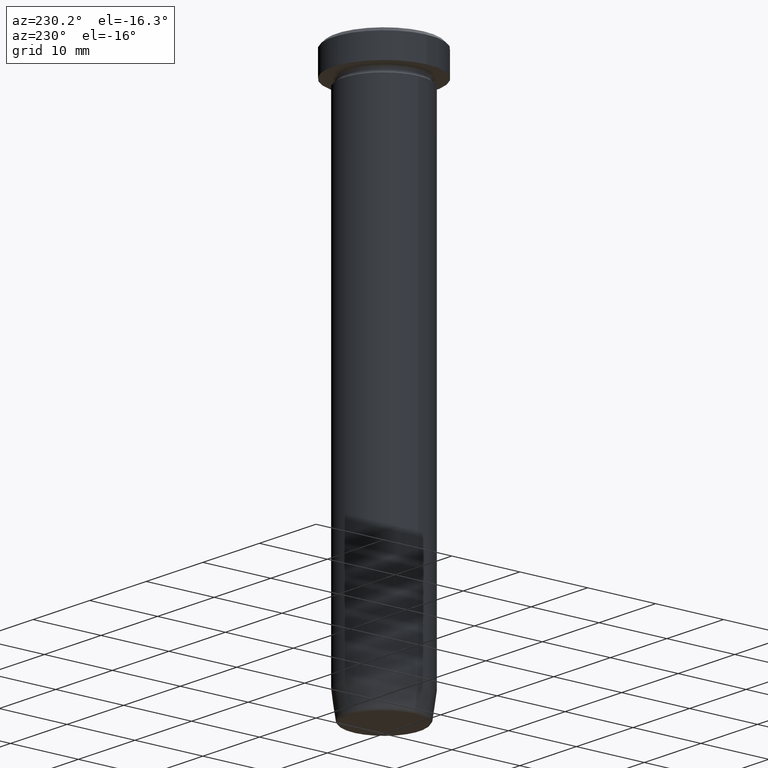
[diagram: clean part render]
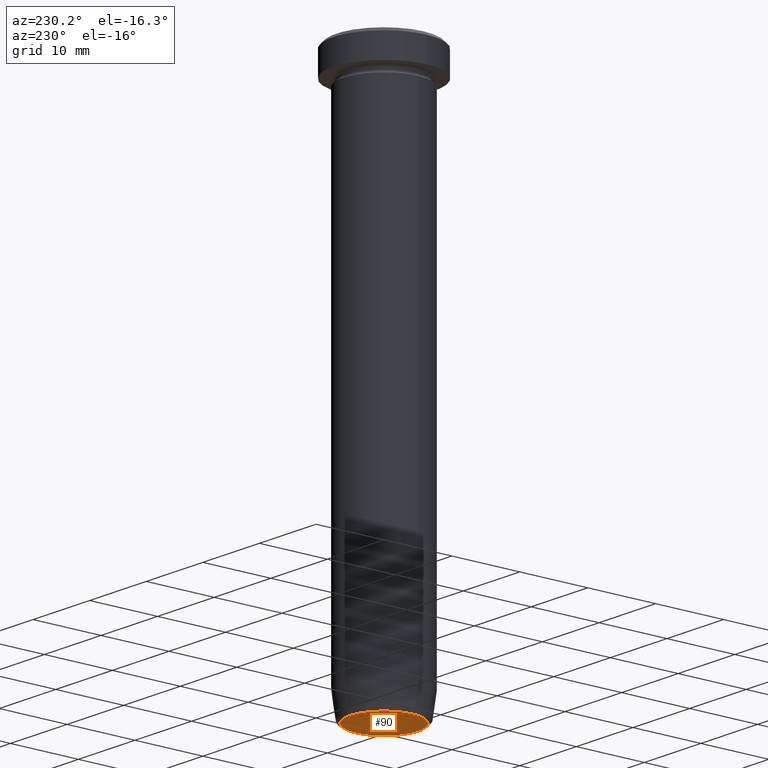
[diagram: same view with one face highlighted and labeled with its STEP entity id]
A machine part, auxiliary view. The second image highlights one B-rep face of the part: STEP entity #90.
In plain terms, the highlighted planar face has unit normal (0, -0, 1).
Its self-contained STEP definition (entity closure, byte-faithful):
#16 = CARTESIAN_POINT ( 'NONE',  ( 0.000000000000000000, 0.000000000000000000, -80.00000000000000000 ) ) ;
#26 = ORIENTED_EDGE ( 'NONE', *, *, #510, .T. ) ;
#59 = AXIS2_PLACEMENT_3D ( 'NONE', #561, #206, #531 ) ;
#73 = VERTEX_POINT ( 'NONE', #196 ) ;
#90 = ADVANCED_FACE ( 'NONE', ( #331 ), #118, .F. ) ;
#114 = EDGE_LOOP ( 'NONE', ( #245, #26 ) ) ;
#118 = PLANE ( 'NONE',  #244 ) ;
#191 = CIRCLE ( 'NONE', #505, 5.003193292282319682 ) ;
#196 = CARTESIAN_POINT ( 'NONE',  ( 5.003193292282319682, 0.000000000000000000, -80.00000000000000000 ) ) ;
#206 = DIRECTION ( 'NONE',  ( 0.000000000000000000, 0.000000000000000000, -1.000000000000000000 ) ) ;
#221 = VERTEX_POINT ( 'NONE', #318 ) ;
#243 = CARTESIAN_POINT ( 'NONE',  ( 0.000000000000000000, 3.469446951953614189E-15, -80.00000000000000000 ) ) ;
#244 = AXIS2_PLACEMENT_3D ( 'NONE', #243, #295, #493 ) ;
#245 = ORIENTED_EDGE ( 'NONE', *, *, #328, .T. ) ;
#295 = DIRECTION ( 'NONE',  ( 0.000000000000000000, -0.000000000000000000, 1.000000000000000000 ) ) ;
#318 = CARTESIAN_POINT ( 'NONE',  ( -5.003193292282319682, 6.430326806079598441E-16, -80.00000000000000000 ) ) ;
#328 = EDGE_CURVE ( 'NONE', #73, #221, #477, .T. ) ;
#331 = FACE_OUTER_BOUND ( 'NONE', #114, .T. ) ;
#477 = CIRCLE ( 'NONE', #59, 5.003193292282319682 ) ;
#493 = DIRECTION ( 'NONE',  ( 1.000000000000000000, 0.000000000000000000, 0.000000000000000000 ) ) ;
#505 = AXIS2_PLACEMENT_3D ( 'NONE', #16, #596, #525 ) ;
#510 = EDGE_CURVE ( 'NONE', #221, #73, #191, .T. ) ;
#525 = DIRECTION ( 'NONE',  ( 1.000000000000000000, 0.000000000000000000, 0.000000000000000000 ) ) ;
#531 = DIRECTION ( 'NONE',  ( 1.000000000000000000, 0.000000000000000000, 0.000000000000000000 ) ) ;
#561 = CARTESIAN_POINT ( 'NONE',  ( 0.000000000000000000, 0.000000000000000000, -80.00000000000000000 ) ) ;
#596 = DIRECTION ( 'NONE',  ( 0.000000000000000000, 0.000000000000000000, -1.000000000000000000 ) ) ;